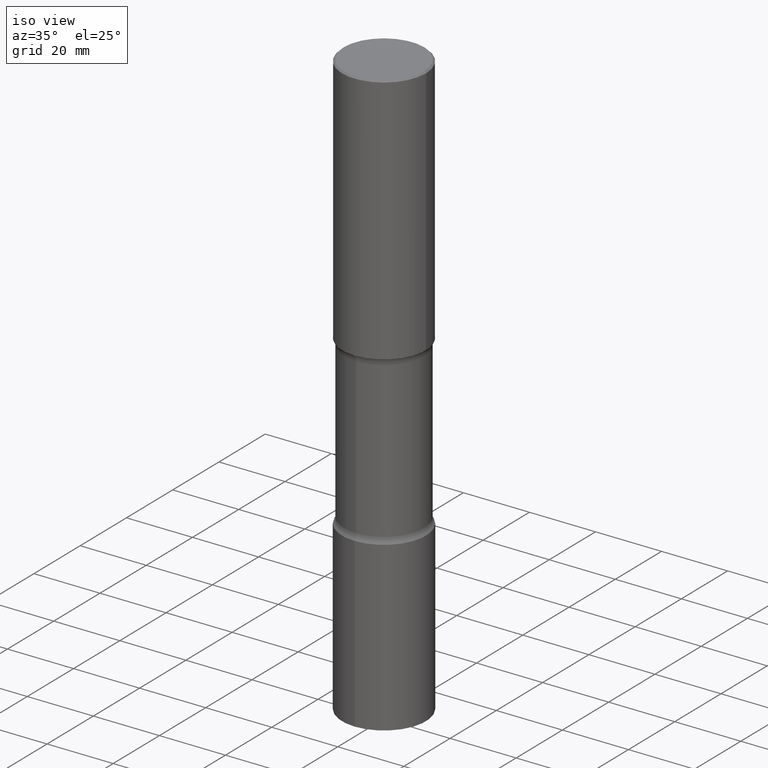
[diagram: clean part render]
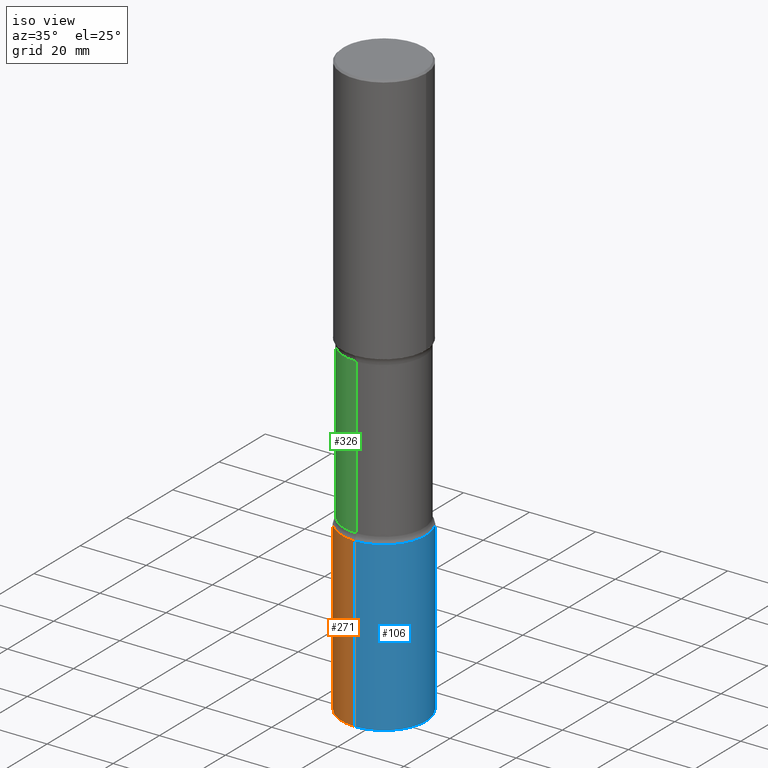
[diagram: same view with three faces highlighted in distinct colors, each labeled with its STEP entity id]
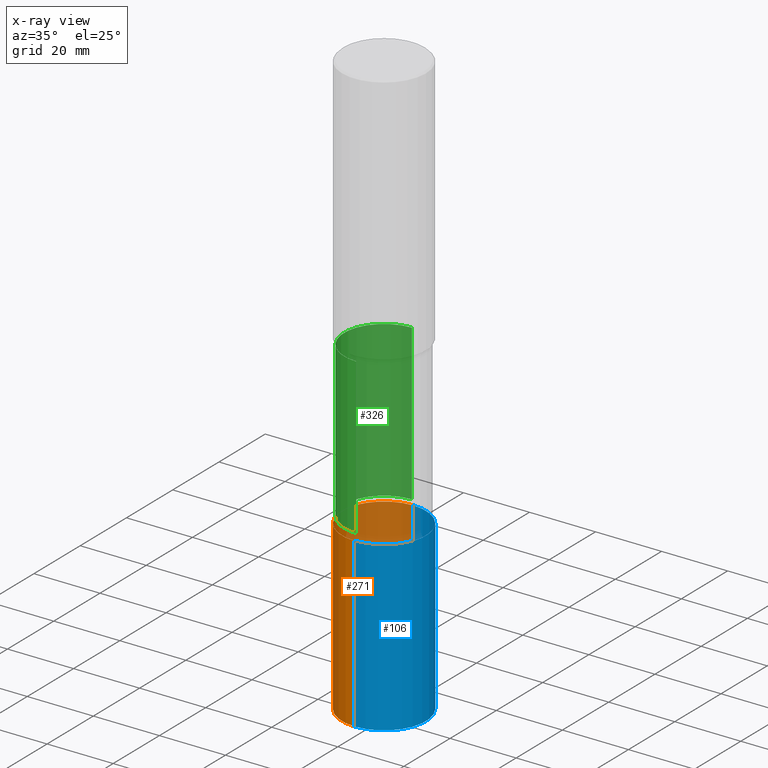
[diagram: x-ray of the same camera — body ghosted, the three highlighted faces saturated]
A machine part, iso view with three faces highlighted in distinct colors.
The next image is the same camera in x-ray (body ghosted, the three faces saturated) — at least one of them is partly hidden behind the body in this view.
Their STEP definitions:

[orange] entity #271 — the highlighted cylindrical surface (partial cylindrical patch) has radius 12.7 mm, axis along (-0, 0, 1).
#17 = ORIENTED_EDGE ( 'NONE', *, *, #136, .T. ) ;
#19 = CIRCLE ( 'NONE', #344, 0.4999999999999998335 ) ;
#67 = CARTESIAN_POINT ( 'NONE',  ( 3.552713678800646080E-15, 0.4999999999999754086, -7.000000000000001776 ) ) ;
#72 = CYLINDRICAL_SURFACE ( 'NONE', #206, 0.4999999999999998335 ) ;
#86 = CARTESIAN_POINT ( 'NONE',  ( -3.491481338843009504E-15, -0.5000000000000173195, -4.999999999999995559 ) ) ;
#95 = DIRECTION ( 'NONE',  ( -2.444961029413743555E-29, 3.492208504080639289E-15, 1.000000000000000000 ) ) ;
#104 = VERTEX_POINT ( 'NONE', #277 ) ;
#109 = CARTESIAN_POINT ( 'NONE',  ( 0.000000000000000000, 0.000000000000000000, 0.000000000000000000 ) ) ;
#114 = AXIS2_PLACEMENT_3D ( 'NONE', #205, #480, #213 ) ;
#115 = LINE ( 'NONE', #304, #364 ) ;
#119 = EDGE_CURVE ( 'NONE', #186, #475, #170, .T. ) ;
#129 = EDGE_LOOP ( 'NONE', ( #189, #17, #307, #414 ) ) ;
#136 = EDGE_CURVE ( 'NONE', #356, #186, #220, .T. ) ;
#170 = LINE ( 'NONE', #176, #430 ) ;
#176 = CARTESIAN_POINT ( 'NONE',  ( -3.491481338843131778E-15, -0.4999999999999998335, 1.746104252040319250E-15 ) ) ;
#186 = VERTEX_POINT ( 'NONE', #478 ) ;
#189 = ORIENTED_EDGE ( 'NONE', *, *, #291, .F. ) ;
#191 = DIRECTION ( 'NONE',  ( -6.982962677686265922E-15, -1.000000000000000000, 4.370956789862822727E-15 ) ) ;
#205 = CARTESIAN_POINT ( 'NONE',  ( 1.711472720589620405E-28, -2.444545952856446990E-14, -7.000000000000000000 ) ) ;
#206 = AXIS2_PLACEMENT_3D ( 'NONE', #109, #374, #312 ) ;
#213 = DIRECTION ( 'NONE',  ( -6.982962677686265922E-15, -1.000000000000000000, 4.370956789862822727E-15 ) ) ;
#215 = DIRECTION ( 'NONE',  ( -2.444961029413743555E-29, 3.492208504080639289E-15, 1.000000000000000000 ) ) ;
#220 = CIRCLE ( 'NONE', #114, 0.4999999999999998335 ) ;
#271 = ADVANCED_FACE ( 'NONE', ( #351 ), #72, .T. ) ;
#277 = CARTESIAN_POINT ( 'NONE',  ( 3.552713678800670534E-15, 0.4999999999999822919, -5.000000000000000000 ) ) ;
#291 = EDGE_CURVE ( 'NONE', #356, #104, #115, .T. ) ;
#304 = CARTESIAN_POINT ( 'NONE',  ( 3.552713678800499352E-15, 0.4999999999999998335, -1.746104252040319250E-15 ) ) ;
#307 = ORIENTED_EDGE ( 'NONE', *, *, #119, .T. ) ;
#312 = DIRECTION ( 'NONE',  ( -6.982962677686265922E-15, -1.000000000000000000, 3.492208504080639684E-15 ) ) ;
#344 = AXIS2_PLACEMENT_3D ( 'NONE', #381, #468, #191 ) ;
#351 = FACE_OUTER_BOUND ( 'NONE', #129, .T. ) ;
#356 = VERTEX_POINT ( 'NONE', #67 ) ;
#364 = VECTOR ( 'NONE', #215, 39.37007874015748143 ) ;
#374 = DIRECTION ( 'NONE',  ( -2.444961029413743836E-29, 3.492208504080639289E-15, 1.000000000000000000 ) ) ;
#381 = CARTESIAN_POINT ( 'NONE',  ( 1.222480514706871301E-28, -1.746104252040319053E-14, -4.999999999999998224 ) ) ;
#405 = EDGE_CURVE ( 'NONE', #104, #475, #19, .T. ) ;
#414 = ORIENTED_EDGE ( 'NONE', *, *, #405, .F. ) ;
#430 = VECTOR ( 'NONE', #95, 39.37007874015748143 ) ;
#468 = DIRECTION ( 'NONE',  ( -2.444961029413743836E-29, 3.492208504080639289E-15, 1.000000000000000000 ) ) ;
#475 = VERTEX_POINT ( 'NONE', #86 ) ;
#478 = CARTESIAN_POINT ( 'NONE',  ( -3.491481338842960595E-15, -0.5000000000000243139, -6.999999999999997335 ) ) ;
#480 = DIRECTION ( 'NONE',  ( -2.444961029413743836E-29, 3.492208504080639289E-15, 1.000000000000000000 ) ) ;

[blue] entity #106 — the highlighted cylindrical surface (partial cylindrical patch) has radius 12.7 mm, axis along (-0, 0, 1).
#1 = CYLINDRICAL_SURFACE ( 'NONE', #474, 0.4999999999999998335 ) ;
#7 = CIRCLE ( 'NONE', #141, 0.4999999999999998335 ) ;
#32 = CARTESIAN_POINT ( 'NONE',  ( 0.000000000000000000, 0.000000000000000000, 0.000000000000000000 ) ) ;
#45 = CARTESIAN_POINT ( 'NONE',  ( 1.222480514706871301E-28, -1.746104252040319053E-14, -4.999999999999998224 ) ) ;
#67 = CARTESIAN_POINT ( 'NONE',  ( 3.552713678800646080E-15, 0.4999999999999754086, -7.000000000000001776 ) ) ;
#83 = FACE_OUTER_BOUND ( 'NONE', #345, .T. ) ;
#86 = CARTESIAN_POINT ( 'NONE',  ( -3.491481338843009504E-15, -0.5000000000000173195, -4.999999999999995559 ) ) ;
#95 = DIRECTION ( 'NONE',  ( -2.444961029413743555E-29, 3.492208504080639289E-15, 1.000000000000000000 ) ) ;
#104 = VERTEX_POINT ( 'NONE', #277 ) ;
#106 = ADVANCED_FACE ( 'NONE', ( #83 ), #1, .T. ) ;
#115 = LINE ( 'NONE', #304, #364 ) ;
#119 = EDGE_CURVE ( 'NONE', #186, #475, #170, .T. ) ;
#141 = AXIS2_PLACEMENT_3D ( 'NONE', #45, #164, #391 ) ;
#162 = DIRECTION ( 'NONE',  ( -2.444961029413743836E-29, 3.492208504080639289E-15, 1.000000000000000000 ) ) ;
#164 = DIRECTION ( 'NONE',  ( -2.444961029413743836E-29, 3.492208504080639289E-15, 1.000000000000000000 ) ) ;
#170 = LINE ( 'NONE', #176, #430 ) ;
#176 = CARTESIAN_POINT ( 'NONE',  ( -3.491481338843131778E-15, -0.4999999999999998335, 1.746104252040319250E-15 ) ) ;
#186 = VERTEX_POINT ( 'NONE', #478 ) ;
#200 = EDGE_CURVE ( 'NONE', #186, #356, #258, .T. ) ;
#215 = DIRECTION ( 'NONE',  ( -2.444961029413743555E-29, 3.492208504080639289E-15, 1.000000000000000000 ) ) ;
#230 = ORIENTED_EDGE ( 'NONE', *, *, #119, .F. ) ;
#239 = AXIS2_PLACEMENT_3D ( 'NONE', #294, #447, #328 ) ;
#258 = CIRCLE ( 'NONE', #239, 0.4999999999999998335 ) ;
#277 = CARTESIAN_POINT ( 'NONE',  ( 3.552713678800670534E-15, 0.4999999999999822919, -5.000000000000000000 ) ) ;
#279 = ORIENTED_EDGE ( 'NONE', *, *, #291, .T. ) ;
#291 = EDGE_CURVE ( 'NONE', #356, #104, #115, .T. ) ;
#294 = CARTESIAN_POINT ( 'NONE',  ( 1.711472720589620405E-28, -2.444545952856446990E-14, -7.000000000000000000 ) ) ;
#304 = CARTESIAN_POINT ( 'NONE',  ( 3.552713678800499352E-15, 0.4999999999999998335, -1.746104252040319250E-15 ) ) ;
#319 = DIRECTION ( 'NONE',  ( -6.982962677686265922E-15, -1.000000000000000000, 3.492208504080639684E-15 ) ) ;
#328 = DIRECTION ( 'NONE',  ( -6.982962677686265922E-15, -1.000000000000000000, 4.370956789862822727E-15 ) ) ;
#345 = EDGE_LOOP ( 'NONE', ( #412, #279, #453, #230 ) ) ;
#356 = VERTEX_POINT ( 'NONE', #67 ) ;
#364 = VECTOR ( 'NONE', #215, 39.37007874015748143 ) ;
#391 = DIRECTION ( 'NONE',  ( -6.982962677686265922E-15, -1.000000000000000000, 4.370956789862822727E-15 ) ) ;
#412 = ORIENTED_EDGE ( 'NONE', *, *, #200, .T. ) ;
#430 = VECTOR ( 'NONE', #95, 39.37007874015748143 ) ;
#447 = DIRECTION ( 'NONE',  ( -2.444961029413743836E-29, 3.492208504080639289E-15, 1.000000000000000000 ) ) ;
#453 = ORIENTED_EDGE ( 'NONE', *, *, #462, .F. ) ;
#462 = EDGE_CURVE ( 'NONE', #475, #104, #7, .T. ) ;
#474 = AXIS2_PLACEMENT_3D ( 'NONE', #32, #162, #319 ) ;
#475 = VERTEX_POINT ( 'NONE', #86 ) ;
#478 = CARTESIAN_POINT ( 'NONE',  ( -3.491481338842960595E-15, -0.5000000000000243139, -6.999999999999997335 ) ) ;

[green] entity #326 — the highlighted cylindrical surface (partial cylindrical patch) has radius 12.065 mm, axis along (0, -0, -1).
#13 = DIRECTION ( 'NONE',  ( 6.982962677686265133E-15, 1.000000000000000000, -3.450755360418017527E-15 ) ) ;
#14 = LINE ( 'NONE', #503, #36 ) ;
#27 = CIRCLE ( 'NONE', #229, 0.4749999999999998668 ) ;
#36 = VECTOR ( 'NONE', #495, 39.37007874015748143 ) ;
#48 = CARTESIAN_POINT ( 'NONE',  ( 3.316907271901049263E-15, 0.4749999999999889866, -3.075000000000000178 ) ) ;
#66 = EDGE_CURVE ( 'NONE', #341, #375, #455, .T. ) ;
#82 = DIRECTION ( 'NONE',  ( 2.497161003496523093E-29, -3.417455170156083034E-15, -1.000000000000000000 ) ) ;
#111 = CARTESIAN_POINT ( 'NONE',  ( 1.721912715406176368E-28, -2.429595286071535581E-14, -6.999999999999998224 ) ) ;
#139 = EDGE_CURVE ( 'NONE', #392, #203, #27, .T. ) ;
#153 = CARTESIAN_POINT ( 'NONE',  ( 3.316907271901098961E-15, 0.4749999999999831024, -4.924999999999999822 ) ) ;
#163 = CARTESIAN_POINT ( 'NONE',  ( 1.203751807180647490E-28, -1.720473338264148338E-14, -4.924999999999998046 ) ) ;
#171 = DIRECTION ( 'NONE',  ( 2.497161003496522813E-29, -3.417455170156083034E-15, -1.000000000000000000 ) ) ;
#177 = CYLINDRICAL_SURFACE ( 'NONE', #497, 0.4750000000000001443 ) ;
#202 = LINE ( 'NONE', #249, #306 ) ;
#203 = VERTEX_POINT ( 'NONE', #48 ) ;
#226 = ORIENTED_EDGE ( 'NONE', *, *, #66, .F. ) ;
#228 = CARTESIAN_POINT ( 'NONE',  ( -3.344492773913547957E-15, -0.4750000000000106914, -3.074999999999997069 ) ) ;
#229 = AXIS2_PLACEMENT_3D ( 'NONE', #287, #365, #13 ) ;
#249 = CARTESIAN_POINT ( 'NONE',  ( -3.258736548941305678E-15, -0.4750000000000244582, -6.999999999999997335 ) ) ;
#256 = ORIENTED_EDGE ( 'NONE', *, *, #139, .T. ) ;
#270 = ORIENTED_EDGE ( 'NONE', *, *, #500, .F. ) ;
#287 = CARTESIAN_POINT ( 'NONE',  ( 7.417770215337909421E-29, -1.088244131785273239E-14, -3.074999999999998845 ) ) ;
#306 = VECTOR ( 'NONE', #171, 39.37007874015748143 ) ;
#314 = ORIENTED_EDGE ( 'NONE', *, *, #340, .T. ) ;
#316 = DIRECTION ( 'NONE',  ( 6.982962677686265133E-15, 1.000000000000000000, -2.300503573612010239E-15 ) ) ;
#326 = ADVANCED_FACE ( 'NONE', ( #376 ), #177, .T. ) ;
#340 = EDGE_CURVE ( 'NONE', #203, #375, #14, .T. ) ;
#341 = VERTEX_POINT ( 'NONE', #457 ) ;
#365 = DIRECTION ( 'NONE',  ( 2.497161003496523093E-29, -3.417455170156083034E-15, -1.000000000000000000 ) ) ;
#375 = VERTEX_POINT ( 'NONE', #153 ) ;
#376 = FACE_OUTER_BOUND ( 'NONE', #410, .T. ) ;
#384 = DIRECTION ( 'NONE',  ( 6.982962677686265922E-15, 1.000000000000000000, -2.300503573612009450E-15 ) ) ;
#392 = VERTEX_POINT ( 'NONE', #228 ) ;
#404 = AXIS2_PLACEMENT_3D ( 'NONE', #163, #82, #384 ) ;
#410 = EDGE_LOOP ( 'NONE', ( #270, #256, #314, #226 ) ) ;
#455 = CIRCLE ( 'NONE', #404, 0.4750000000000003109 ) ;
#457 = CARTESIAN_POINT ( 'NONE',  ( -3.344492773913501414E-15, -0.4750000000000176303, -4.924999999999997158 ) ) ;
#495 = DIRECTION ( 'NONE',  ( 2.497161003496522813E-29, -3.417455170156083034E-15, -1.000000000000000000 ) ) ;
#497 = AXIS2_PLACEMENT_3D ( 'NONE', #111, #499, #316 ) ;
#499 = DIRECTION ( 'NONE',  ( 2.497161003496523093E-29, -3.417455170156083034E-15, -1.000000000000000000 ) ) ;
#500 = EDGE_CURVE ( 'NONE', #392, #341, #202, .T. ) ;
#503 = CARTESIAN_POINT ( 'NONE',  ( 3.316907271901149448E-15, 0.4749999999999758304, -7.000000000000000000 ) ) ;